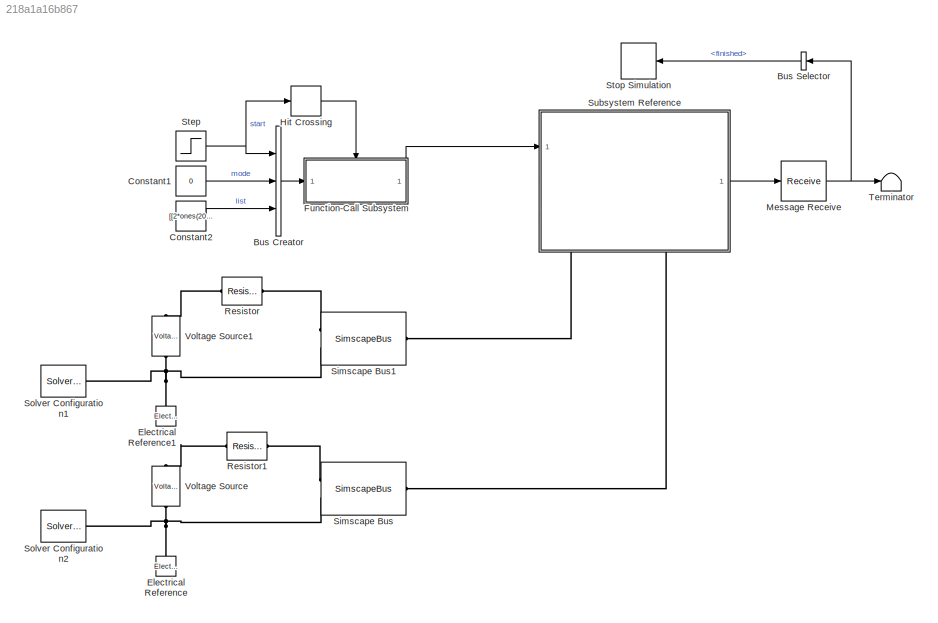
MODEL slx_218a1a16b867
KIND model
CONFIG AbsTol = auto
CONFIG EnableMultiTasking = off
CONFIG FixedStep = auto
CONFIG MaxStep = 1e-3
CONFIG MinStep = auto
CONFIG RelTol = 1e-3
CONFIG SampleTimeConstraint = Unconstrained
CONFIG SolverName = VariableStepAuto
CONFIG StartTime = 0.0
CONFIG StopTime = Inf
BLOCK [BusCreator] Bus Creator
  DisplayOption = bar
  InheritFromInputs = off
  Inputs = 3
  NonVirtualBus = on
  OutDataTypeStr = Bus: CyclerCmd
  Ports = [3, 1]
BLOCK [BusSelector] Bus Selector
  OutputSignals = finished
  Ports = [1, 1]
BLOCK [Constant] Constant1
  Value = 0
BLOCK [Constant] Constant2
  Value = [[2*ones(20,1);4*ones(10,1);10*ones(70,1)],1*ones(100,1)]
BLOCK [Reference] Electrical Reference  REF=fl_lib/Electrical/Electrical Elements/Electrical Reference
  NameLocation = right
  Ports = [0, 0, 0, 0, 0, 1]
  SourceBlock = fl_lib/Electrical/Electrical Elements/Electrical Reference
  SourceProductBaseCode = PW,SS,VE
  SourceType = Electrical Reference
BLOCK [Reference] Electrical Reference1  REF=fl_lib/Electrical/Electrical Elements/Electrical Reference
  NameLocation = right
  Ports = [0, 0, 0, 0, 0, 1]
  SourceBlock = fl_lib/Electrical/Electrical Elements/Electrical Reference
  SourceProductBaseCode = PW,SS,VE
  SourceType = Electrical Reference
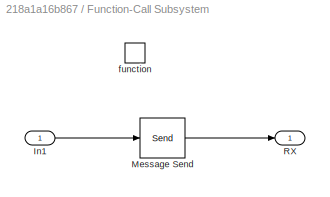
BLOCK [SubSystem] Function-Call Subsystem
  Ports = [1, 1, 0, 1]
  RequestExecContextInheritance = off
  TreatAsAtomicUnit = on
BLOCK [Inport] Function-Call Subsystem/In1
BLOCK [Send] Function-Call Subsystem/Message Send
  InputPortMap = u1
  OutputPortMessageModes = m
  Ports = [1, 1]
BLOCK [Outport] Function-Call Subsystem/RX
BLOCK [TriggerPort] Function-Call Subsystem/function
  Ports = []
  StatesWhenEnabling = held
  TriggerType = function-call
  VariantControl = (inherit)
BLOCK [HitCross] Hit Crossing
  HitCrossingDirection = rising
  HitCrossingOffset = 0.01
  HitCrossingOutputType = Function-Call
  Ports = [1, 1]
BLOCK [Receive] Message Receive
  InputPortMap = u0
  InputPortMessageModes = m
  OutputPortMap = o1
  Ports = [1, 1]
  ValueSourceWhenQueueIsEmpty = Use initial value
BLOCK [Reference] Resistor  REF=fl_lib/Electrical/Electrical Elements/Resistor
  Ports = [0, 0, 0, 0, 0, 1, 1]
  SourceBlock = fl_lib/Electrical/Electrical Elements/Resistor
  SourceProductBaseCode = PW,SS,VE
  SourceType = Resistor
BLOCK [Reference] Resistor1  REF=fl_lib/Electrical/Electrical Elements/Resistor
  Ports = [0, 0, 0, 0, 0, 1, 1]
  SourceBlock = fl_lib/Electrical/Electrical Elements/Resistor
  SourceProductBaseCode = PW,SS,VE
  SourceType = Resistor
BLOCK [SimscapeBus] Simscape Bus
  HierarchyStrings = Pos;Neg
  Ports = [0, 0, 0, 0, 0, 2, 1]
BLOCK [SimscapeBus] Simscape Bus1
  HierarchyStrings = Pos;Neg
  Ports = [0, 0, 0, 0, 0, 2, 1]
BLOCK [Reference] Solver Configuration1  REF=nesl_utility/Solver
Configuration
  Ports = [0, 0, 0, 0, 0, 0, 1]
  SourceBlock = nesl_utility/Solver\nConfiguration
  SourceProductBaseCode = SS,PW,VE
  SourceType = Solver\nConfiguration
BLOCK [Reference] Solver Configuration2  REF=nesl_utility/Solver
Configuration
  Ports = [0, 0, 0, 0, 0, 0, 1]
  SourceBlock = nesl_utility/Solver\nConfiguration
  SourceProductBaseCode = SS,PW,VE
  SourceType = Solver\nConfiguration
BLOCK [Step] Step
  SampleTime = 0
BLOCK [Stop] Stop Simulation
BLOCK [SubSystem] Subsystem Reference
  PortSchema = {"entries":[{"content":{"sides":[{"content":{"connectorIds":["In1"]},"type":"ConnectorPlacement.EquallySpacedRectSide","uuid":"f71a85fa-5f1b-4f60-afc2-2af602cd6bfa"},{"content":{"connectorIds":["Out1"],"side":"RIGHT"},"type":"ConnectorPlacement.EquallySpacedRectSide","uuid":"a58ae27e-7fda-4e3b-bf34-5bf7de7a0120"},{"content":{"connectorIds":[],"side":"TOP"},"type":"ConnectorPlacement.EquallySpacedR...<+401ch>
  Ports = [1, 1, 0, 0, 0, 2]
  ReferencedSubsystem = Cycler
  RequestExecContextInheritance = off
BLOCK [Terminator] Terminator
BLOCK [Reference] Voltage Source  REF=ee_lib/Sources/Voltage Source
  NameLocation = right
  Ports = [0, 0, 0, 0, 0, 1, 1]
  SourceBlock = ee_lib/Sources/Voltage Source
  SourceProductBaseCode = PS
  SourceType = Voltage Source
BLOCK [Reference] Voltage Source1  REF=ee_lib/Sources/Voltage Source
  NameLocation = right
  Ports = [0, 0, 0, 0, 0, 1, 1]
  SourceBlock = ee_lib/Sources/Voltage Source
  SourceProductBaseCode = PS
  SourceType = Voltage Source
LINE Bus Creator:1 -> Function-Call Subsystem:1
LINE Bus Selector:1 -> Stop Simulation:1
LINE Constant1:1 -> Bus Creator:2
LINE Constant2:1 -> Bus Creator:3
LINE Function-Call Subsystem/In1:1 -> Function-Call Subsystem/Message Send:1
LINE Function-Call Subsystem/Message Send:1 -> Function-Call Subsystem/RX:1
LINE Function-Call Subsystem:1 -> Subsystem Reference:1
LINE Hit Crossing:1 -> Function-Call Subsystem:trigger
NET Message Receive:1 -> Bus Selector:1, Terminator:1
NET Step:1 -> Bus Creator:1, Hit Crossing:1
LINE Subsystem Reference:1 -> Message Receive:1
PNET net1: Electrical Reference1:LConn1 -- Simscape Bus1:LConn2 -- Solver Configuration1:RConn1 -- Voltage Source1:RConn1
PNET net2: Electrical Reference:LConn1 -- Simscape Bus:LConn2 -- Solver Configuration2:RConn1 -- Voltage Source:RConn1
PLINE Resistor1:LConn1 -- Voltage Source:LConn1
PLINE Resistor1:RConn1 -- Simscape Bus:LConn1
PLINE Resistor:LConn1 -- Voltage Source1:LConn1
PLINE Resistor:RConn1 -- Simscape Bus1:LConn1
PLINE Simscape Bus1:RConn1 -- Subsystem Reference:LConn1
PLINE Simscape Bus:RConn1 -- Subsystem Reference:LConn2
note: NET lines group one-source signal fan-out (src -> all destinations, sorted); 1:1 wires keep LINE; PNET lines group multi-terminal physical nets as a canonical sorted terminal list (undirected conserving connections); 2-terminal nets keep the pairwise PLINE form
